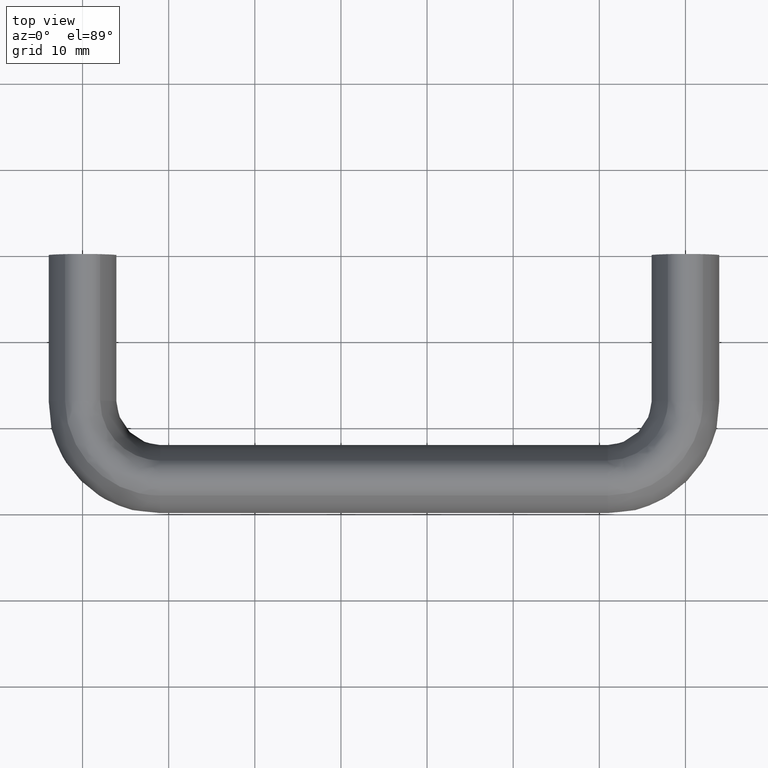
[diagram: clean part render]
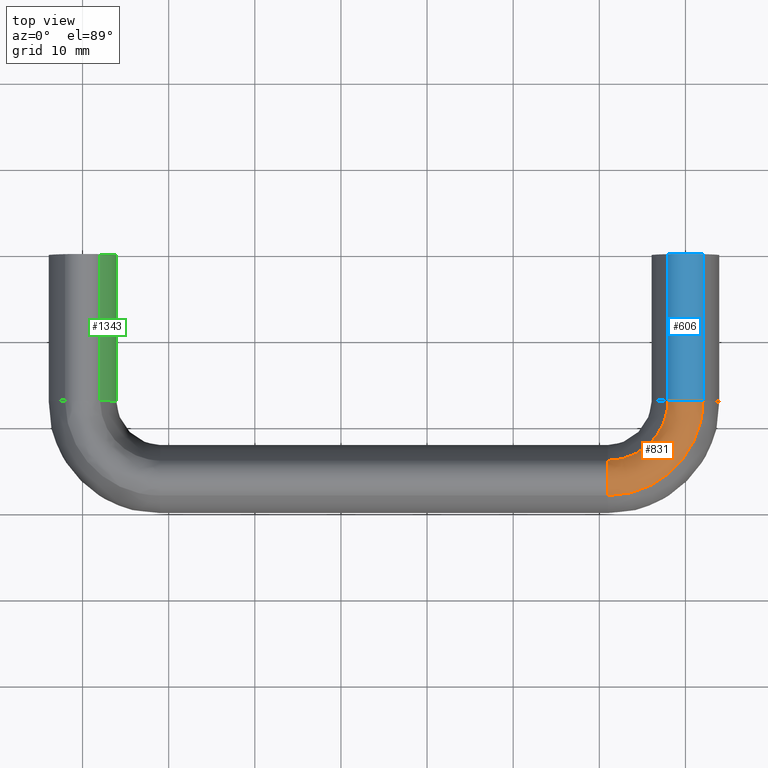
[diagram: same view with three faces highlighted in distinct colors, each labeled with its STEP entity id]
A machine part, top view with three faces highlighted in distinct colors.
Their STEP definitions:

[orange] entity #831 — the highlighted face is a freeform B-spline surface patch.
#512=CARTESIAN_POINT('',(67.962264150943412,-17.0,6.867924528301880));
#513=VERTEX_POINT('',#512);
#565=CARTESIAN_POINT('',(72.037735849056602,-17.0,6.867924528301880));
#566=VERTEX_POINT('',#565);
#567=CARTESIAN_POINT('',(72.037735849056602,-17.0,6.867924528301883));
#568=CARTESIAN_POINT('',(71.333333333333343,-16.999999999999996,8.0));
#569=CARTESIAN_POINT('',(70.0,-17.0,8.0));
#570=CARTESIAN_POINT('',(68.666666666666671,-16.999999999999996,8.0));
#571=CARTESIAN_POINT('',(67.962264150943412,-17.0,6.867924528301884));
#579=(BOUNDED_CURVE()B_SPLINE_CURVE(2,(#567,#568,#569,#570,#571),.UNSPECIFIED.,.F.,.U.)B_SPLINE_CURVE_WITH_KNOTS((3,2,3),(0.0,0.500000000000000,1.0),.UNSPECIFIED.)CURVE()GEOMETRIC_REPRESENTATION_ITEM()RATIONAL_B_SPLINE_CURVE((1.0,0.874157276121537,1.0,0.874157276121537,1.0))REPRESENTATION_ITEM(''));
#580=EDGE_CURVE('',#566,#513,#579,.T.);
#742=CARTESIAN_POINT('',(61.0,-23.962264150943401,6.867924528301880));
#743=VERTEX_POINT('',#742);
#757=CARTESIAN_POINT('',(61.0,-23.962264150943401,6.867924528301880));
#758=CARTESIAN_POINT('',(67.962264150943412,-23.962264150943405,6.867924528301881));
#759=CARTESIAN_POINT('',(67.962264150943412,-17.0,6.867924528301880));
#767=(BOUNDED_CURVE()B_SPLINE_CURVE(2,(#757,#758,#759),.UNSPECIFIED.,.F.,.U.)CURVE()GEOMETRIC_REPRESENTATION_ITEM()QUASI_UNIFORM_CURVE()RATIONAL_B_SPLINE_CURVE((1.0,0.707106781186548,1.0))REPRESENTATION_ITEM(''));
#768=EDGE_CURVE('',#743,#513,#767,.T.);
#774=CARTESIAN_POINT('',(60.224471362346563,-28.125726451810646,6.661029227923504));
#775=CARTESIAN_POINT('',(73.017473702996114,-29.017474035189920,6.661029227923503));
#776=CARTESIAN_POINT('',(72.125726473248235,-16.224471669890182,6.661029227923502));
#777=CARTESIAN_POINT('',(60.270362326300173,-27.467375119869260,7.999999999999997));
#778=CARTESIAN_POINT('',(72.306354311987704,-28.306354624524321,7.999999999999996));
#779=CARTESIAN_POINT('',(71.467375140038286,-16.270362615645283,7.999999999999997));
#780=CARTESIAN_POINT('',(60.374165605785940,-25.978214260698991,7.999999999999999));
#781=CARTESIAN_POINT('',(70.697834496034687,-26.697834764107728,7.999999999999998));
#782=CARTESIAN_POINT('',(69.978214277998646,-16.374165853966787,7.999999999999998));
#783=CARTESIAN_POINT('',(60.477968926298708,-24.489052812955123,7.999999999999999));
#784=CARTESIAN_POINT('',(69.089314044332852,-25.089314267942257,7.999999999999998));
#785=CARTESIAN_POINT('',(68.489052827385393,-16.477969133315320,7.999999999999999));
#786=CARTESIAN_POINT('',(60.523859875381817,-23.830701694345969,6.661028464748258));
#787=CARTESIAN_POINT('',(68.378194883755611,-24.378195087707844,6.661028464748256));
#788=CARTESIAN_POINT('',(67.830701707507714,-16.523860064199908,6.661028464748258));
#796=(BOUNDED_SURFACE()B_SPLINE_SURFACE(2,2,((#774,#777,#780,#783,#786),(#775,#778,#781,#784,#787),(#776,#779,#782,#785,#788)),.UNSPECIFIED.,.F.,.F.,.U.)B_SPLINE_SURFACE_WITH_KNOTS((3,3),(3,2,3),(0.0,20.324432583531411),(0.0,2.741788440108529,5.483577785528187),.UNSPECIFIED.)GEOMETRIC_REPRESENTATION_ITEM()RATIONAL_B_SPLINE_SURFACE(((0.889780948944189,0.767966631102088,0.919258316275454,0.767966581147086,0.889781029387958),(0.583896453720354,0.503958859771230,0.603240237457421,0.503958826989512,0.583896506509562),(0.889780937738490,0.767966621430491,0.919258304698524,0.767966571475490,0.889781018182258)))REPRESENTATION_ITEM('')SURFACE());
#797=ORIENTED_EDGE('',*,*,#768,.F.);
#798=CARTESIAN_POINT('',(61.0,-28.037735849056599,6.867924528301880));
#799=VERTEX_POINT('',#798);
#800=CARTESIAN_POINT('',(61.0,-28.037735849056599,6.867924528301883));
#801=CARTESIAN_POINT('',(61.0,-27.333333333333339,8.0));
#802=CARTESIAN_POINT('',(61.0,-26.0,8.0));
#803=CARTESIAN_POINT('',(61.0,-24.666666666666668,8.0));
#804=CARTESIAN_POINT('',(61.0,-23.962264150943390,6.867924528301884));
#812=(BOUNDED_CURVE()B_SPLINE_CURVE(2,(#800,#801,#802,#803,#804),.UNSPECIFIED.,.F.,.U.)B_SPLINE_CURVE_WITH_KNOTS((3,2,3),(0.0,0.500000000000000,1.0),.UNSPECIFIED.)CURVE()GEOMETRIC_REPRESENTATION_ITEM()RATIONAL_B_SPLINE_CURVE((1.0,0.874157276121537,1.0,0.874157276121537,1.0))REPRESENTATION_ITEM(''));
#813=EDGE_CURVE('',#799,#743,#812,.T.);
#814=ORIENTED_EDGE('',*,*,#813,.F.);
#815=CARTESIAN_POINT('',(61.0,-28.037735849056599,6.867924528301880));
#816=CARTESIAN_POINT('',(72.037735849056588,-28.037735849056588,6.867924528301881));
#817=CARTESIAN_POINT('',(72.037735849056588,-17.0,6.867924528301880));
#825=(BOUNDED_CURVE()B_SPLINE_CURVE(2,(#815,#816,#817),.UNSPECIFIED.,.F.,.U.)CURVE()GEOMETRIC_REPRESENTATION_ITEM()QUASI_UNIFORM_CURVE()RATIONAL_B_SPLINE_CURVE((1.0,0.707106781186548,1.0))REPRESENTATION_ITEM(''));
#826=EDGE_CURVE('',#799,#566,#825,.T.);
#827=ORIENTED_EDGE('',*,*,#826,.T.);
#828=ORIENTED_EDGE('',*,*,#580,.T.);
#829=EDGE_LOOP('',(#797,#814,#827,#828));
#830=FACE_OUTER_BOUND('',#829,.T.);
#831=ADVANCED_FACE('',(#830),#796,.T.);

[blue] entity #606 — the highlighted face is a freeform B-spline surface patch.
#512=CARTESIAN_POINT('',(67.962264150943412,-17.0,6.867924528301880));
#513=VERTEX_POINT('',#512);
#527=CARTESIAN_POINT('',(67.962264150943412,6.387821E-015,6.867924528301880));
#528=VERTEX_POINT('',#527);
#529=CARTESIAN_POINT('',(67.962264150943412,-17.0,6.867924528301880));
#530=CARTESIAN_POINT('',(67.962264150943412,6.387821E-015,6.867924528301880));
#531=QUASI_UNIFORM_CURVE('',1,(#529,#530),.UNSPECIFIED.,.F.,.U.);
#532=EDGE_CURVE('',#513,#528,#531,.T.);
#550=CARTESIAN_POINT('',(72.070227962710362,-17.425000000000001,6.814148336247297));
#551=CARTESIAN_POINT('',(72.070227962710362,0.435625000000009,6.814148336247297));
#552=CARTESIAN_POINT('',(69.924228043561996,-17.425000000000001,10.473263872596576));
#553=CARTESIAN_POINT('',(69.924228043561996,0.435625000000009,10.473263872596576));
#554=CARTESIAN_POINT('',(67.893025523427639,-17.425000000000001,6.749199092878428));
#555=CARTESIAN_POINT('',(67.893025523427639,0.435625000000009,6.749199092878428));
#563=(BOUNDED_SURFACE()B_SPLINE_SURFACE(1,2,((#550,#552,#554),(#551,#553,#555)),.UNSPECIFIED.,.F.,.F.,.U.)B_SPLINE_SURFACE_WITH_KNOTS((2,2),(3,3),(0.0,17.860625000000010),(0.0,5.598554528610997),.UNSPECIFIED.)GEOMETRIC_REPRESENTATION_ITEM()RATIONAL_B_SPLINE_SURFACE(((1.0,0.492423560103467,1.0),(1.0,0.492423560103467,1.0)))REPRESENTATION_ITEM('')SURFACE());
#564=ORIENTED_EDGE('',*,*,#532,.F.);
#565=CARTESIAN_POINT('',(72.037735849056602,-17.0,6.867924528301880));
#566=VERTEX_POINT('',#565);
#567=CARTESIAN_POINT('',(72.037735849056602,-17.0,6.867924528301883));
#568=CARTESIAN_POINT('',(71.333333333333343,-16.999999999999996,8.0));
#569=CARTESIAN_POINT('',(70.0,-17.0,8.0));
#570=CARTESIAN_POINT('',(68.666666666666671,-16.999999999999996,8.0));
#571=CARTESIAN_POINT('',(67.962264150943412,-17.0,6.867924528301884));
#579=(BOUNDED_CURVE()B_SPLINE_CURVE(2,(#567,#568,#569,#570,#571),.UNSPECIFIED.,.F.,.U.)B_SPLINE_CURVE_WITH_KNOTS((3,2,3),(0.0,0.500000000000000,1.0),.UNSPECIFIED.)CURVE()GEOMETRIC_REPRESENTATION_ITEM()RATIONAL_B_SPLINE_CURVE((1.0,0.874157276121537,1.0,0.874157276121537,1.0))REPRESENTATION_ITEM(''));
#580=EDGE_CURVE('',#566,#513,#579,.T.);
#581=ORIENTED_EDGE('',*,*,#580,.F.);
#582=CARTESIAN_POINT('',(72.037735849056602,6.938894E-015,6.867924528301880));
#583=VERTEX_POINT('',#582);
#584=CARTESIAN_POINT('',(72.037735849056602,-17.0,6.867924528301880));
#585=CARTESIAN_POINT('',(72.037735849056602,6.938894E-015,6.867924528301880));
#586=QUASI_UNIFORM_CURVE('',1,(#584,#585),.UNSPECIFIED.,.F.,.U.);
#587=EDGE_CURVE('',#566,#583,#586,.T.);
#588=ORIENTED_EDGE('',*,*,#587,.T.);
#589=CARTESIAN_POINT('',(72.037735849056602,6.938894E-015,6.867924528301883));
#590=CARTESIAN_POINT('',(71.333333333333343,6.938894E-015,8.0));
#591=CARTESIAN_POINT('',(70.0,6.938894E-015,8.0));
#592=CARTESIAN_POINT('',(68.666666666666671,6.938894E-015,8.0));
#593=CARTESIAN_POINT('',(67.962264150943412,6.938894E-015,6.867924528301884));
#601=(BOUNDED_CURVE()B_SPLINE_CURVE(2,(#589,#590,#591,#592,#593),.UNSPECIFIED.,.F.,.U.)B_SPLINE_CURVE_WITH_KNOTS((3,2,3),(0.0,0.500000000000000,1.0),.UNSPECIFIED.)CURVE()GEOMETRIC_REPRESENTATION_ITEM()RATIONAL_B_SPLINE_CURVE((1.0,0.874157276121537,1.0,0.874157276121537,1.0))REPRESENTATION_ITEM(''));
#602=EDGE_CURVE('',#583,#528,#601,.T.);
#603=ORIENTED_EDGE('',*,*,#602,.T.);
#604=EDGE_LOOP('',(#564,#581,#588,#603));
#605=FACE_OUTER_BOUND('',#604,.T.);
#606=ADVANCED_FACE('',(#605),#563,.T.);

[green] entity #1343 — the highlighted face is a freeform B-spline surface patch.
#1074=CARTESIAN_POINT('',(2.037735849056610,-17.0,-6.867924528301880));
#1075=VERTEX_POINT('',#1074);
#1125=CARTESIAN_POINT('',(2.037735849056605,-17.0,6.867924528301880));
#1126=VERTEX_POINT('',#1125);
#1127=CARTESIAN_POINT('',(2.037735849056607,-17.0,6.867924528301883));
#1128=CARTESIAN_POINT('',(6.311111111111106,-17.0,4.336809E-015));
#1129=CARTESIAN_POINT('',(2.037735849056610,-17.0,-6.867924528301876));
#1137=(BOUNDED_CURVE()B_SPLINE_CURVE(2,(#1127,#1128,#1129),.UNSPECIFIED.,.F.,.U.)CURVE()GEOMETRIC_REPRESENTATION_ITEM()QUASI_UNIFORM_CURVE()RATIONAL_B_SPLINE_CURVE((1.0,0.849056603773585,1.0))REPRESENTATION_ITEM(''));
#1138=EDGE_CURVE('',#1126,#1075,#1137,.T.);
#1280=CARTESIAN_POINT('',(2.037735849056605,8.006153E-016,-6.867924528301880));
#1281=VERTEX_POINT('',#1280);
#1297=CARTESIAN_POINT('',(2.037735849056605,8.006153E-016,-6.867924528301880));
#1298=CARTESIAN_POINT('',(2.037735849056610,-17.0,-6.867924528301880));
#1299=QUASI_UNIFORM_CURVE('',1,(#1297,#1298),.UNSPECIFIED.,.F.,.U.);
#1300=EDGE_CURVE('',#1281,#1075,#1299,.T.);
#1305=CARTESIAN_POINT('',(1.854172187294992,0.425000000000001,7.154505302853003));
#1306=CARTESIAN_POINT('',(1.854172187294994,-17.435625000000002,7.154505302853003));
#1307=CARTESIAN_POINT('',(6.679946947863645,0.425000000000002,-0.166726280751662));
#1308=CARTESIAN_POINT('',(6.679946947863646,-17.435625000000002,-0.166726280751661));
#1309=CARTESIAN_POINT('',(1.699586271650080,0.425000000000001,-7.383688347669949));
#1310=CARTESIAN_POINT('',(1.699586271650083,-17.435625000000002,-7.383688347669947));
#1318=(BOUNDED_SURFACE()B_SPLINE_SURFACE(1,2,((#1305,#1307,#1309),(#1306,#1308,#1310)),.UNSPECIFIED.,.F.,.F.,.U.)B_SPLINE_SURFACE_WITH_KNOTS((2,2),(3,3),(0.0,17.860624999999999),(0.0,15.897995435850341),.UNSPECIFIED.)GEOMETRIC_REPRESENTATION_ITEM()RATIONAL_B_SPLINE_SURFACE(((1.0,0.829037572555042,1.0),(1.0,0.829037572555042,1.0)))REPRESENTATION_ITEM('')SURFACE());
#1319=ORIENTED_EDGE('',*,*,#1300,.F.);
#1320=CARTESIAN_POINT('',(2.037735849056605,2.495424E-016,6.867924528301880));
#1321=VERTEX_POINT('',#1320);
#1322=CARTESIAN_POINT('',(2.037735849056607,0.0,6.867924528301883));
#1323=CARTESIAN_POINT('',(6.311111111111106,0.0,4.336809E-015));
#1324=CARTESIAN_POINT('',(2.037735849056610,0.0,-6.867924528301876));
#1332=(BOUNDED_CURVE()B_SPLINE_CURVE(2,(#1322,#1323,#1324),.UNSPECIFIED.,.F.,.U.)CURVE()GEOMETRIC_REPRESENTATION_ITEM()QUASI_UNIFORM_CURVE()RATIONAL_B_SPLINE_CURVE((1.0,0.849056603773585,1.0))REPRESENTATION_ITEM(''));
#1333=EDGE_CURVE('',#1321,#1281,#1332,.T.);
#1334=ORIENTED_EDGE('',*,*,#1333,.F.);
#1335=CARTESIAN_POINT('',(2.037735849056605,2.495424E-016,6.867924528301880));
#1336=CARTESIAN_POINT('',(2.037735849056605,-17.0,6.867924528301880));
#1337=QUASI_UNIFORM_CURVE('',1,(#1335,#1336),.UNSPECIFIED.,.F.,.U.);
#1338=EDGE_CURVE('',#1321,#1126,#1337,.T.);
#1339=ORIENTED_EDGE('',*,*,#1338,.T.);
#1340=ORIENTED_EDGE('',*,*,#1138,.T.);
#1341=EDGE_LOOP('',(#1319,#1334,#1339,#1340));
#1342=FACE_OUTER_BOUND('',#1341,.T.);
#1343=ADVANCED_FACE('',(#1342),#1318,.T.);